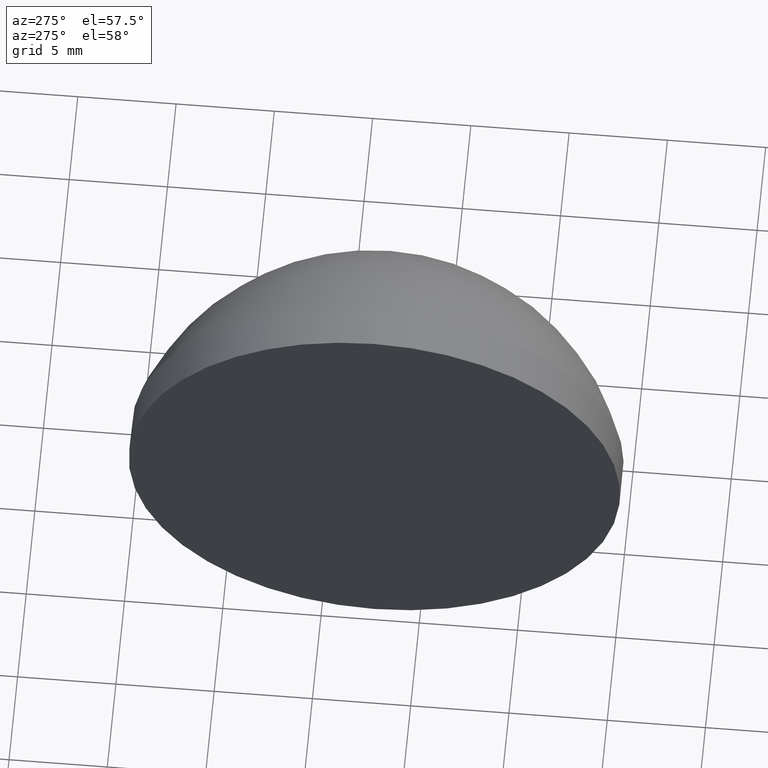
[diagram: clean part render]
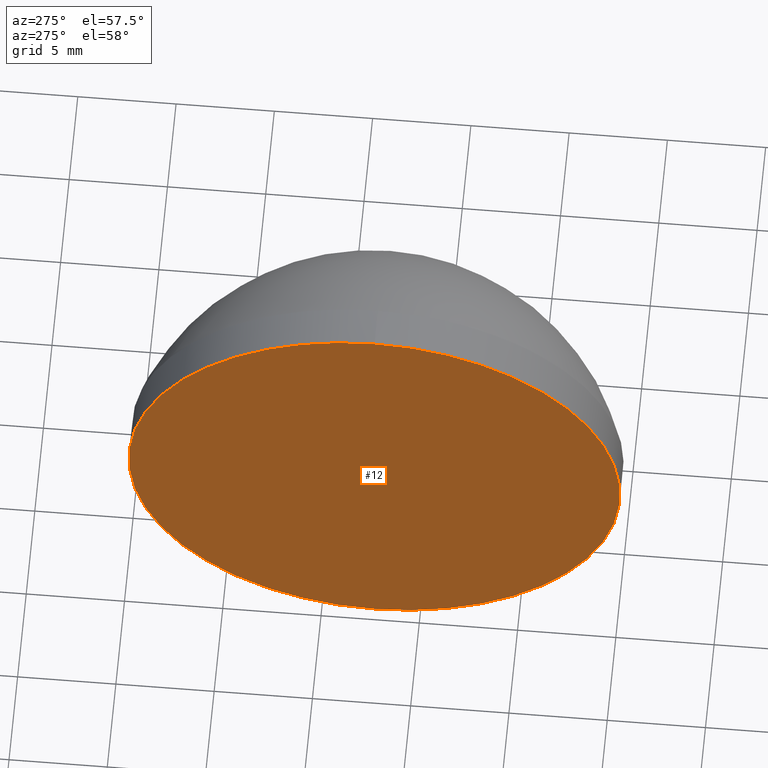
[diagram: same view with one face highlighted and labeled with its STEP entity id]
A machine part, auxiliary view. The second image highlights one B-rep face of the part: STEP entity #12.
In plain terms, the highlighted planar face has unit normal (1, 0, 0).
Its self-contained STEP definition (entity closure, byte-faithful):
#3 = VERTEX_POINT ( 'NONE', #131 ) ;
#7 = AXIS2_PLACEMENT_3D ( 'NONE', #74, #31, #58 ) ;
#12 = ADVANCED_FACE ( 'NONE', ( #138 ), #16, .F. ) ;
#16 = PLANE ( 'NONE',  #7 ) ;
#21 = CIRCLE ( 'NONE', #126, 12.49999999999999600 ) ;
#30 = DIRECTION ( 'NONE',  ( -1.000000000000000000, -0.0000000000000000000, -0.0000000000000000000 ) ) ;
#31 = DIRECTION ( 'NONE',  ( 1.000000000000000000, 0.0000000000000000000, 0.0000000000000000000 ) ) ;
#43 = DIRECTION ( 'NONE',  ( -1.000000000000000000, -0.0000000000000000000, -0.0000000000000000000 ) ) ;
#58 = DIRECTION ( 'NONE',  ( 0.0000000000000000000, 0.0000000000000000000, -1.000000000000000000 ) ) ;
#62 = CARTESIAN_POINT ( 'NONE',  ( 205.2844079542375400, -102.6914362713783400, 0.0000000000000000000 ) ) ;
#74 = CARTESIAN_POINT ( 'NONE',  ( 205.2844079542375400, -102.6914362713783400, 0.0000000000000000000 ) ) ;
#77 = ORIENTED_EDGE ( 'NONE', *, *, #109, .T. ) ;
#87 = VERTEX_POINT ( 'NONE', #161 ) ;
#102 = CIRCLE ( 'NONE', #169, 12.49999999999999600 ) ;
#109 = EDGE_CURVE ( 'NONE', #3, #87, #102, .T. ) ;
#126 = AXIS2_PLACEMENT_3D ( 'NONE', #62, #43, #148 ) ;
#129 = DIRECTION ( 'NONE',  ( 0.0000000000000000000, 0.0000000000000000000, 1.000000000000000000 ) ) ;
#131 = CARTESIAN_POINT ( 'NONE',  ( 205.2844079542375400, -102.6914362713783400, 12.49999999999999600 ) ) ;
#138 = FACE_OUTER_BOUND ( 'NONE', #166, .T. ) ;
#148 = DIRECTION ( 'NONE',  ( 0.0000000000000000000, 0.0000000000000000000, 1.000000000000000000 ) ) ;
#157 = EDGE_CURVE ( 'NONE', #87, #3, #21, .T. ) ;
#161 = CARTESIAN_POINT ( 'NONE',  ( 205.2844079542375400, -102.6914362713783400, -12.49999999999999600 ) ) ;
#166 = EDGE_LOOP ( 'NONE', ( #77, #171 ) ) ;
#169 = AXIS2_PLACEMENT_3D ( 'NONE', #186, #30, #129 ) ;
#171 = ORIENTED_EDGE ( 'NONE', *, *, #157, .T. ) ;
#186 = CARTESIAN_POINT ( 'NONE',  ( 205.2844079542375400, -102.6914362713783400, 0.0000000000000000000 ) ) ;